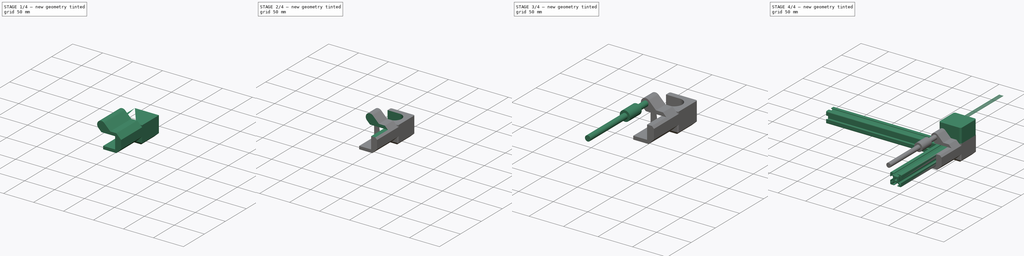
[diagram: build sequence overview — one tinted view per stage of 4, left to right]
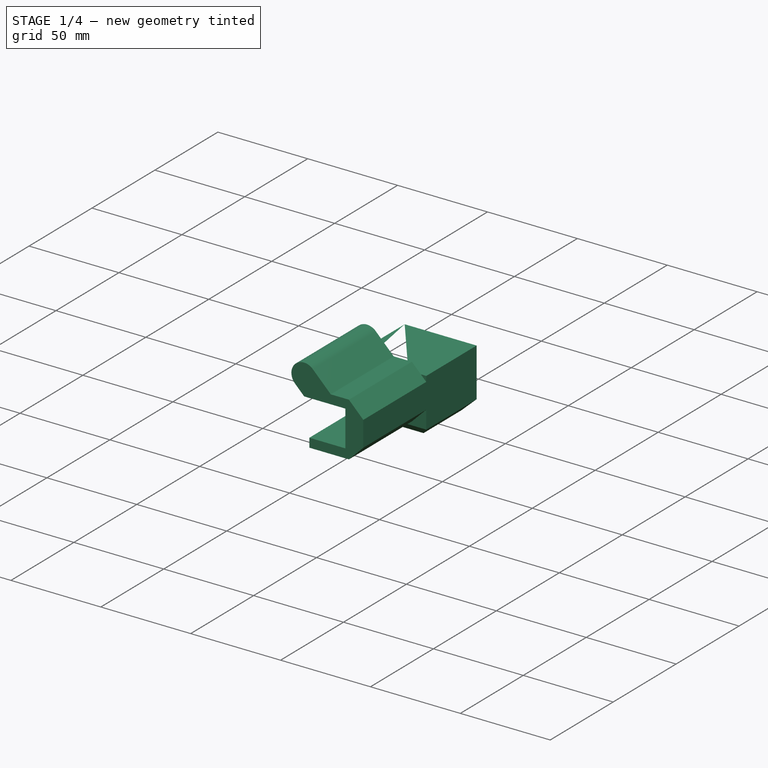
[diagram: stage 1 of 4 — iso view after this stage's code; geometry added in this stage tinted green]
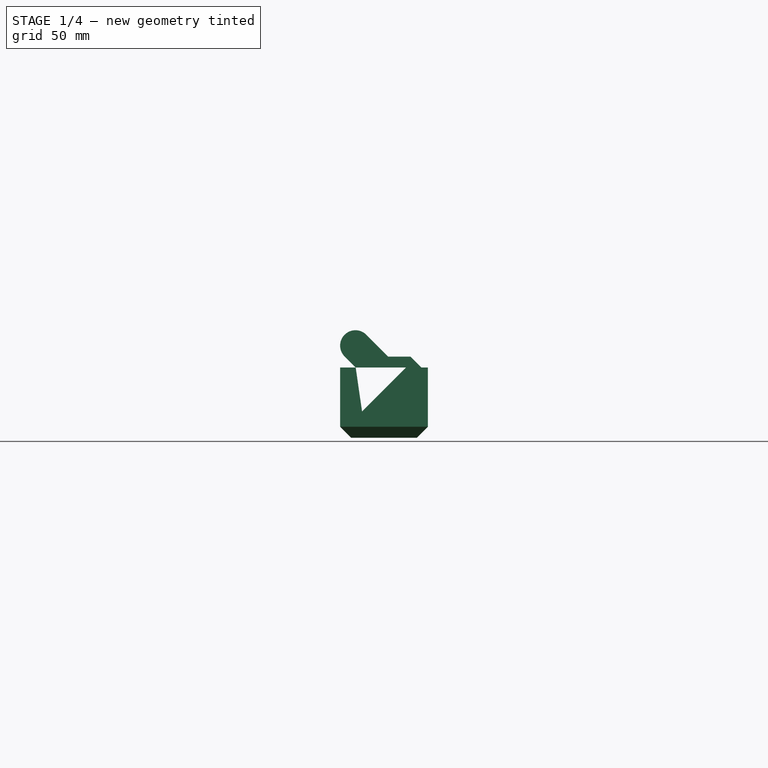
[diagram: stage 1 of 4 — front view after this stage's code; geometry added in this stage tinted green]
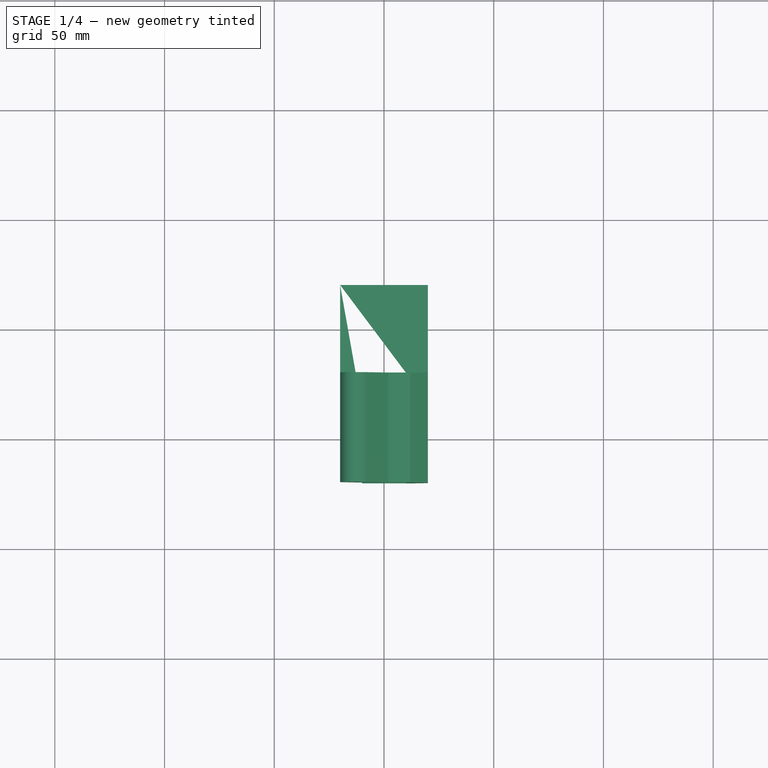
[diagram: stage 1 of 4 — top view after this stage's code; geometry added in this stage tinted green]
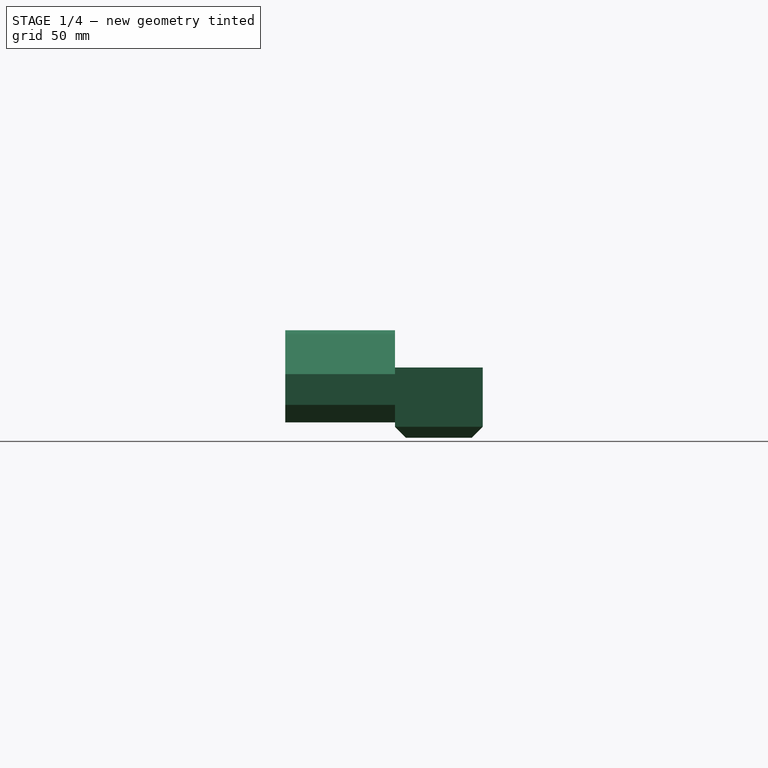
[diagram: stage 1 of 4 — right view after this stage's code; geometry added in this stage tinted green]
FCSTD DOCUMENT  (FreeCAD 0.16R4945 (Git))
Label: PulleyCover
License: All rights reserved
LicenseURL: http://en.wikipedia.org/wiki/All_rights_reserved
objects: Part::Mirroring×5, Sketcher::SketchObject×5, Part::Feature×2, PartDesign::Pad×2, PartDesign::Pocket×2, Part::Chamfer×1, App::DocumentObjectGroup×1, Part::Fillet×1
note: 22 computed .brp shape members not serialized (recipe doc carries the construction recipe); baked Part::Feature solids carry a one-line shape summary decoded from their .brp

FEATURE [Sketcher::SketchObject] Sketch001  label="Base"
  sketch-geometry (4):
    g0: LineSegment StartX=-20 StartY=-20 StartZ=0 EndX=-20 EndY=20 EndZ=0
    g1: LineSegment StartX=-20 StartY=20 StartZ=0 EndX=20 EndY=20 EndZ=0
    g2: LineSegment StartX=20 StartY=20 StartZ=0 EndX=20 EndY=-20 EndZ=0
    g3: LineSegment StartX=20 StartY=-20 StartZ=0 EndX=-20 EndY=-20 EndZ=0
  constraints (12):
    c: Coincident(g0,g1)
    c: Coincident(g1,g2)
    c: Coincident(g2,g3)
    c: Horizontal(g1)
    c: Horizontal(g3)
    c: Vertical(g0)
    c: Vertical(g2)
    c: DistanceX(g1) = 40
    c: DistanceY(g0) = 40
    c: Symmetric(g1,g0,g-2)
    c: Coincident(g3,g0)
    c: DistanceY(g0) = -20
FEATURE [Part::Feature] Pocket013001  label="IdlerHold"
  Placement = pos=(0,-150,-10) rot=(0,0,1;0rad)
  shape: bbox 80.83 x 79.49 x 49.8 mm, 107 faces (baked)
FEATURE [PartDesign::Pad] Pad  label="Base001"
  Length = 32
  Length2 = 100
  Reversed = true
  Sketch = -> Sketch001
  Type = 0
FEATURE [Part::Chamfer] Chamfer
  Base = -> Pad
  Edges = 4 edges r=5: [Edge4,Edge7,Edge10,Edge12]
FEATURE [App::DocumentObjectGroup] Group  label="src"
  Group = -> [Pocket013001,Part__Mirroring002,Part__Mirroring004,Sketch,Part__Mirroring,Part__Mirroring001,Pocket008001,Part__Mirroring006]
FEATURE [Sketcher::SketchObject] Sketch004  label="SmRodHold"
  Placement = pos=(0,-20,0) rot=(1,0,0;1.5708rad)
  Support = -> Chamfer [Face2]
  sketch-geometry (13):
    g0: LineSegment StartX=20 StartY=-3 StartZ=0 EndX=20 EndY=-17 EndZ=0
    g1: LineSegment StartX=12 StartY=-25 StartZ=0 EndX=-10 EndY=-25 EndZ=0
    g2: LineSegment StartX=-10 StartY=-25 StartZ=0 EndX=-10 EndY=-20 EndZ=0
    g3: LineSegment StartX=-10 StartY=-20 StartZ=0 EndX=10 EndY=-20 EndZ=0
    g4: LineSegment StartX=10 StartY=-20 StartZ=0 EndX=10 EndY=0 EndZ=0
    g5: ArcOfCircle CenterX=-13 CenterY=10 CenterZ=0 NormalX=0 NormalY=0 NormalZ=1 Radius=7 StartAngle=0.785395 EndAngle=3.92699
    g6: LineSegment StartX=-17.9497 StartY=5.05025 StartZ=0 EndX=-12.8995 EndY=0 EndZ=0
    g7: LineSegment StartX=1.89949 StartY=5 StartZ=0 EndX=-8.05023 EndY=14.9497 EndZ=0
    g8: LineSegment StartX=1.89949 StartY=5 StartZ=0 EndX=12 EndY=5 EndZ=0
    g9: LineSegment StartX=-12.8995 StartY=0 StartZ=0 EndX=10 EndY=0 EndZ=0
    g10: LineSegment StartX=12 StartY=5 StartZ=0 EndX=20 EndY=-3 EndZ=0
    g11: LineSegment StartX=12 StartY=-25 StartZ=0 EndX=20 EndY=-17 EndZ=0
    g12: LineSegment [constr] StartX=12 StartY=5 StartZ=0 EndX=12 EndY=-25 EndZ=0
  constraints (39):
    c: Coincident(g1,g2)
    c: Coincident(g2,g3)
    c: Coincident(g3,g4)
    c: Horizontal(g3)
    c: Horizontal(g1)
    c: Vertical(g0)
    c: Vertical(g4)
    c: Vertical(g2)
    c: DistanceY(g2) = 5
    c: DistanceX(g3) = 20
    c: DistanceX(g0) = 20
    c: DistanceY(g3) = -20
    c: DistanceX(g4) = 10
    c: DistanceY(g4) = 20
    c: Coincident(g6,g5)
    c: Coincident(g5,g7)
    c: DistanceX(g5) = -13
    c: DistanceY(g5) = 10
    c: Radius(g5) = 7
    c: Tangent(g6,g5)
    c: Tangent(g7,g5)
    c: Parallel(g7,g6)
    c: Coincident(g8,g7)
    c: Horizontal(g8)
    c: Angle(g7) = 2.35619
    c: Coincident(g9,g4)
    c: Coincident(g9,g6)
    c: Horizontal(g9)
    c: Coincident(g10,g8)
    c: Coincident(g10,g0)
    c: Angle(g10) = -0.785398
    c: DistanceY(g8) = 5
    c: Coincident(g11,g1)
    c: Coincident(g11,g0)
    c: Angle(g11) = 0.785398
    c: Vertical(g12)
    c: Coincident(g12,g8)
    c: Coincident(g12,g1)
    c: DistanceX(g8,g0) = 8
FEATURE [PartDesign::Pad] Pad001  label="SmRodHold001"
  Length = 50
  Length2 = 100
  Sketch = -> Sketch004
  Type = 0
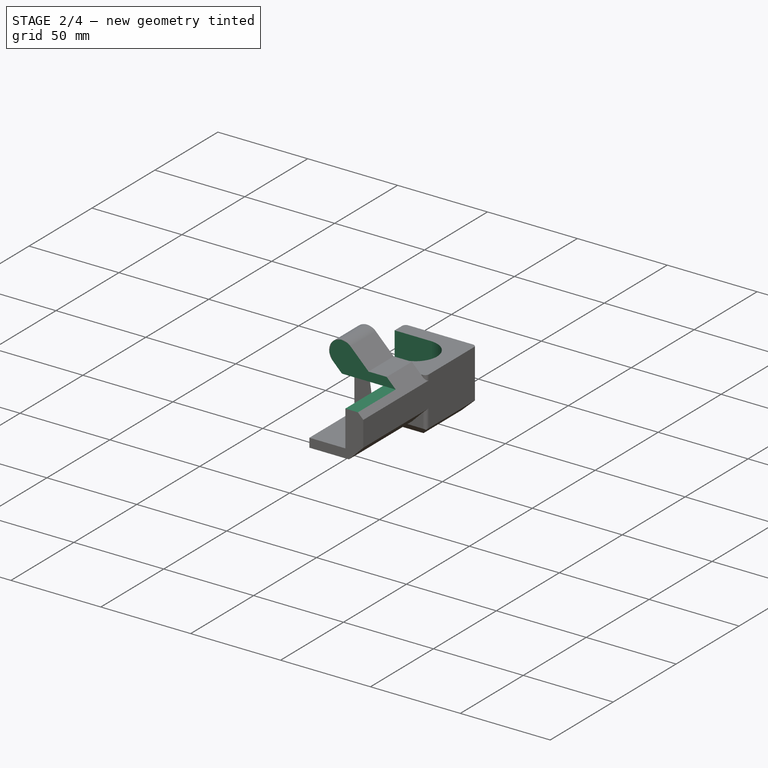
[diagram: stage 2 of 4 — iso view after this stage's code; geometry added in this stage tinted green]
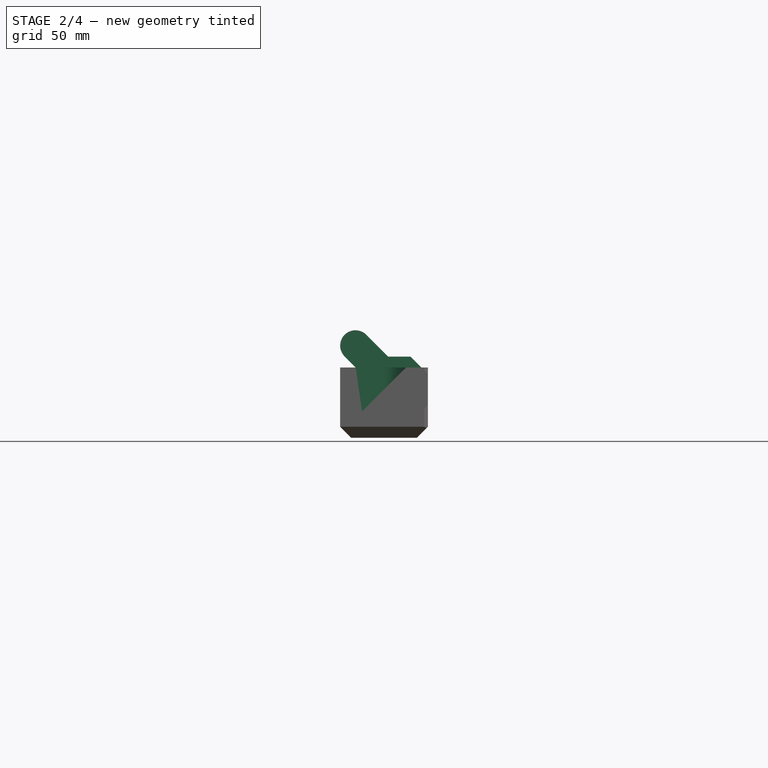
[diagram: stage 2 of 4 — front view after this stage's code; geometry added in this stage tinted green]
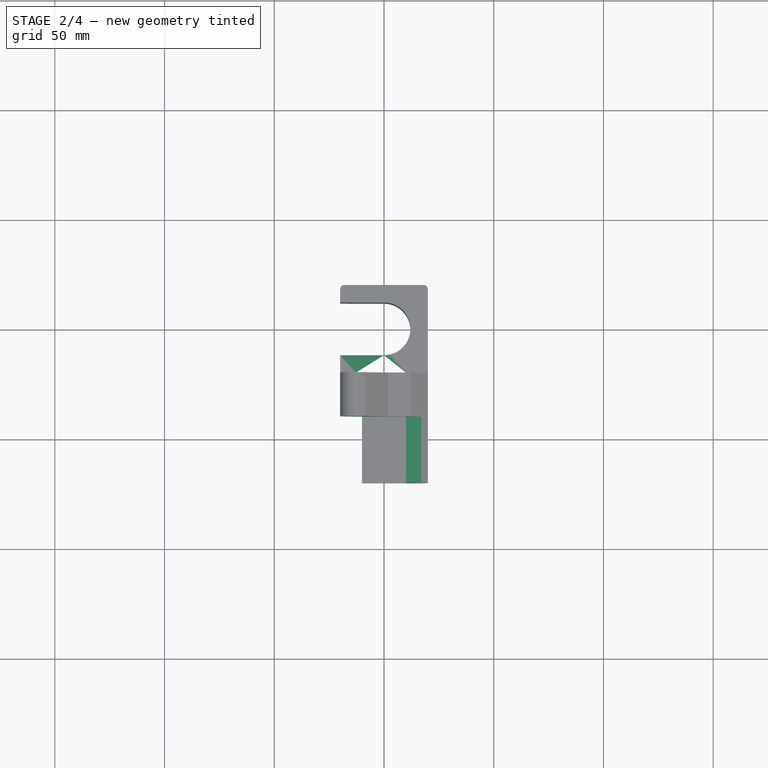
[diagram: stage 2 of 4 — top view after this stage's code; geometry added in this stage tinted green]
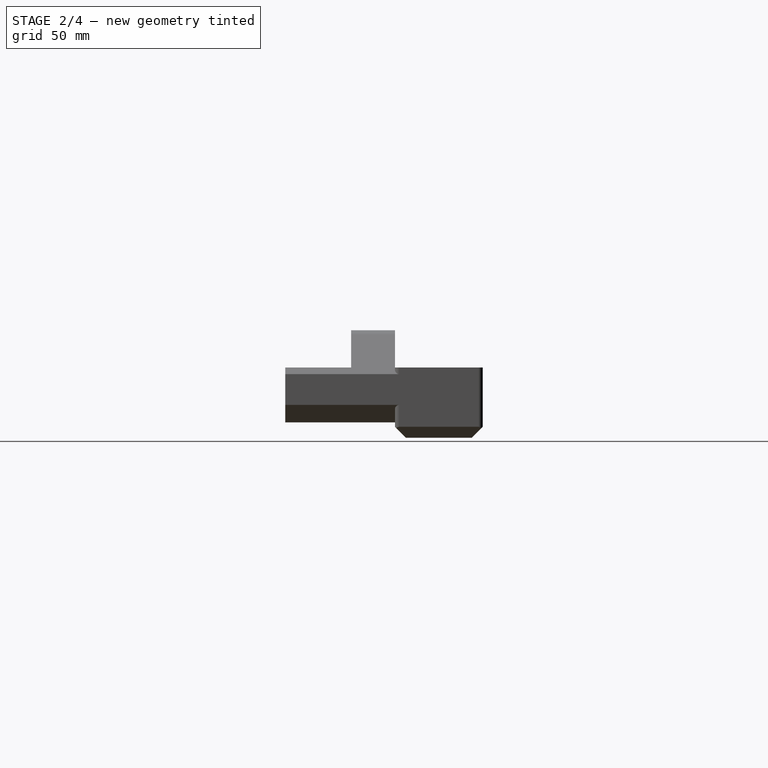
[diagram: stage 2 of 4 — right view after this stage's code; geometry added in this stage tinted green]
FEATURE [Part::Fillet] Fillet
  Base = -> Pad001
  Edges = 4 edges r=2: [Edge27,Edge45,Edge47,Edge50]
FEATURE [Sketcher::SketchObject] Sketch005  label="AxisEndCut"
  Placement = pos=(20,0,0) rot=(0.57735,0.57735,0.57735;2.0944rad)
  Support = -> Fillet [Face7]
  sketch-geometry (4):
    g0: LineSegment StartX=-77.7263 StartY=23.9465 StartZ=0 EndX=-40 EndY=23.9465 EndZ=0
    g1: LineSegment StartX=-40 StartY=23.9465 StartZ=0 EndX=-40 EndY=0 EndZ=0
    g2: LineSegment StartX=-40 StartY=0 StartZ=0 EndX=-77.7263 EndY=0 EndZ=0
    g3: LineSegment StartX=-77.7263 StartY=0 StartZ=0 EndX=-77.7263 EndY=23.9465 EndZ=0
  constraints (10):
    c: Coincident(g0,g1)
    c: Coincident(g1,g2)
    c: Coincident(g2,g3)
    c: Coincident(g3,g0)
    c: Horizontal(g0)
    c: Horizontal(g2)
    c: Vertical(g1)
    c: Vertical(g3)
    c: PointOnObject(g1,g-1)
    c: DistanceX(g1) = -40
FEATURE [PartDesign::Pocket] Pocket  label="AxisEndCut001"
  Length = 5
  Sketch = -> Sketch005
  Type = 1
FEATURE [Sketcher::SketchObject] Sketch006  label="ShaftPlace"
  Placement = pos=(0,0,-32) rot=(1,0,0;3.14159rad)
  Support = -> Pocket [Face29]
  sketch-geometry (4):
    g0: ArcOfCircle CenterX=0 CenterY=0 CenterZ=0 NormalX=0 NormalY=0 NormalZ=1 Radius=12 StartAngle=4.71239 EndAngle=7.85399
    g1: LineSegment StartX=-4.81024e-05 StartY=12 StartZ=0 EndX=-32.2043 EndY=12 EndZ=0
    g2: LineSegment StartX=-32.2043 StartY=12 StartZ=0 EndX=-32.2043 EndY=-12 EndZ=0
    g3: LineSegment StartX=-32.2043 StartY=-12 StartZ=0 EndX=-1.2845e-08 EndY=-12 EndZ=0
  constraints (11):
    c: Coincident(g1,g2)
    c: Coincident(g2,g3)
    c: Coincident(g0,g3)
    c: Coincident(g1,g0)
    c: Horizontal(g1)
    c: Horizontal(g3)
    c: Vertical(g2)
    c: Tangent(g1,g0)
    c: Tangent(g3,g0)
    c: Coincident(g0,g-1)
    c: Radius(g0) = 12
FEATURE [PartDesign::Pocket] Pocket013002  label="ShaftPlace001"
  Length = 33
  Sketch = -> Sketch006
  Type = 1
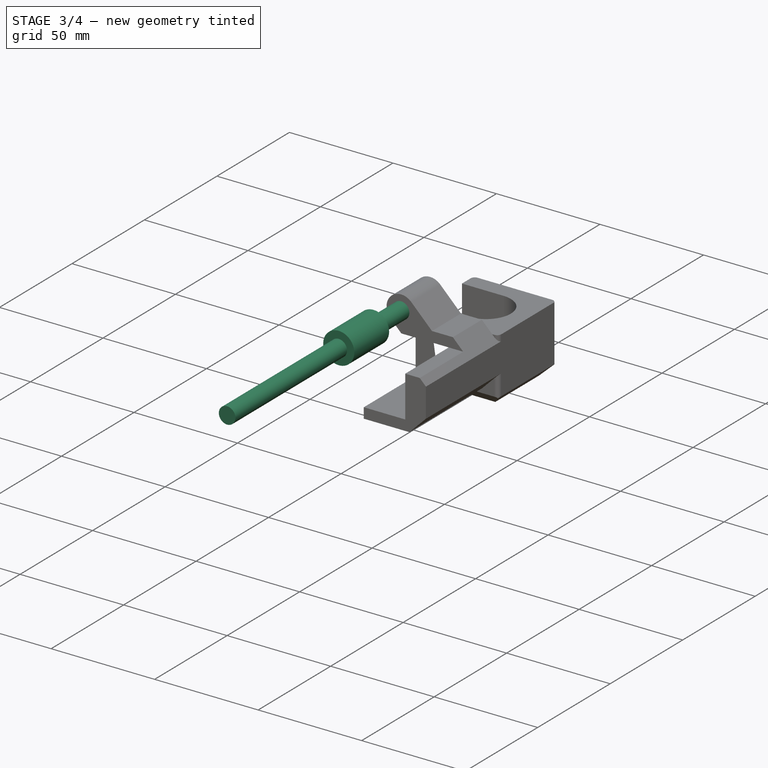
[diagram: stage 3 of 4 — iso view after this stage's code; geometry added in this stage tinted green]
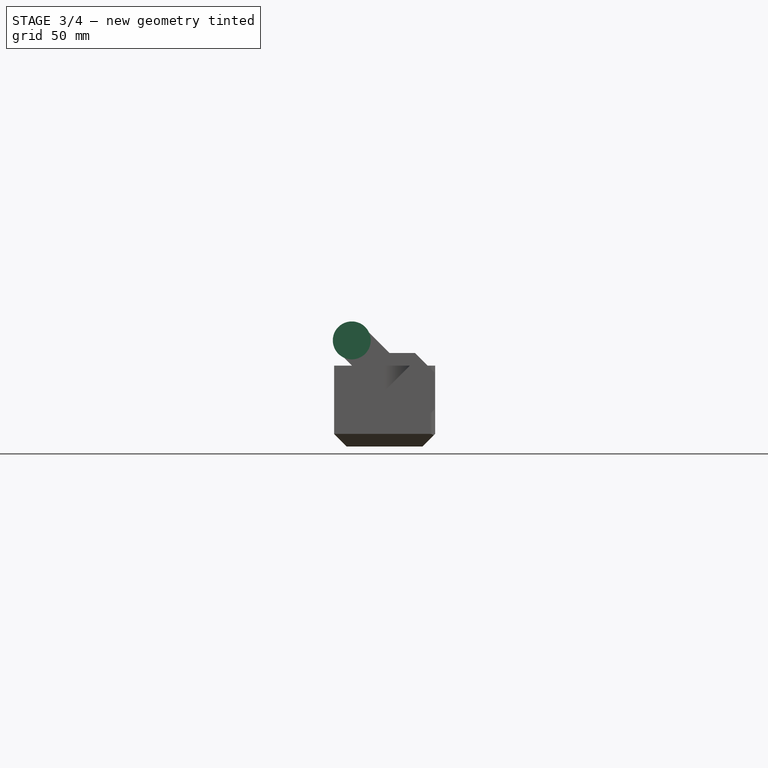
[diagram: stage 3 of 4 — front view after this stage's code; geometry added in this stage tinted green]
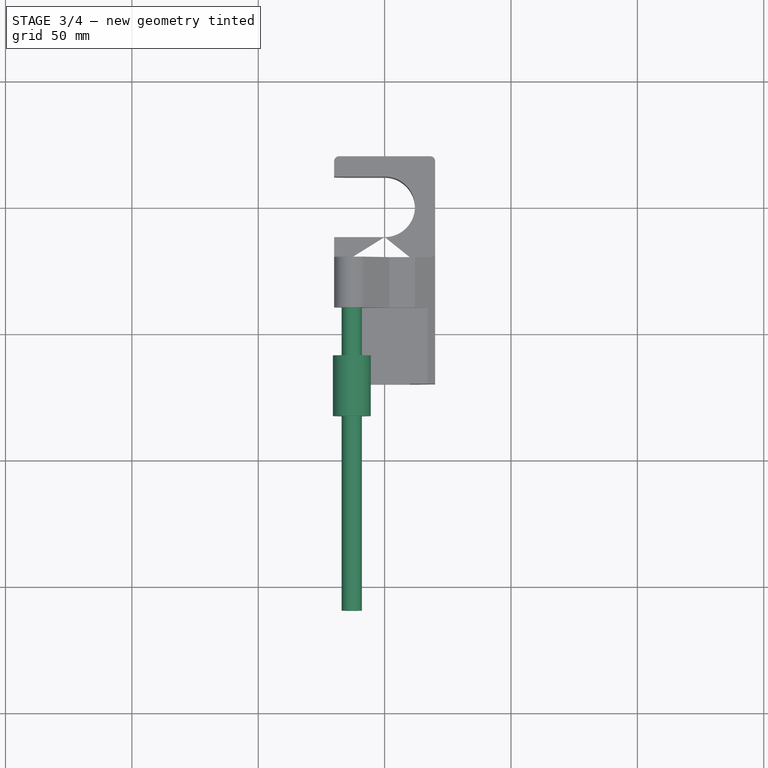
[diagram: stage 3 of 4 — top view after this stage's code; geometry added in this stage tinted green]
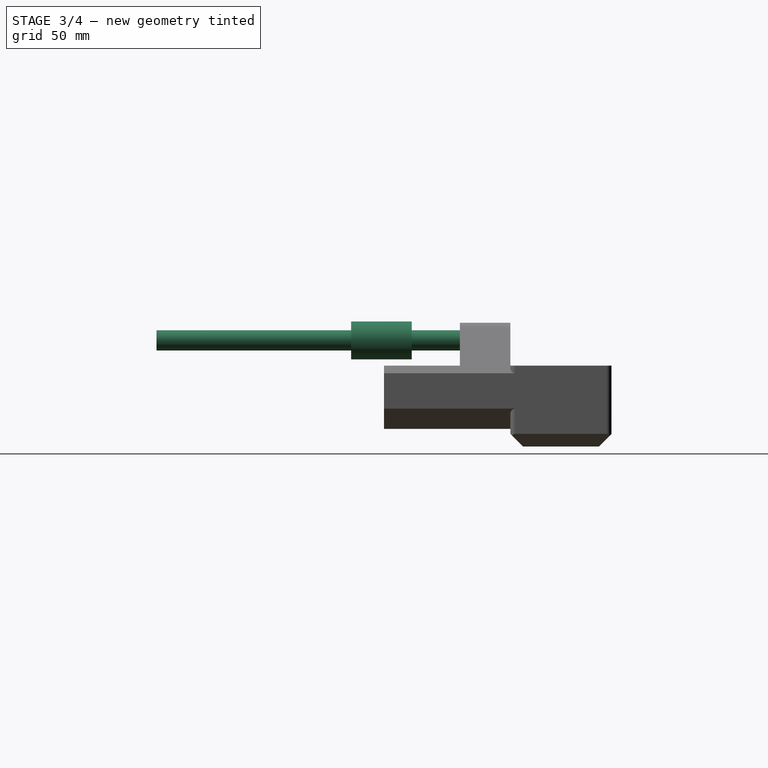
[diagram: stage 3 of 4 — right view after this stage's code; geometry added in this stage tinted green]
FEATURE [Part::Mirroring] Part__Mirroring004  label="YBar (Mirror #5)"
  Base = (0,0,0)
  Normal = (1,0,0)
  Placement = pos=(-110,-90,-20) rot=(0,0,1;0rad)
FEATURE [Part::Feature] Pocket008001  label="Ycarriage"
  Placement = pos=(-40,-71,-10) rot=(0,0,1;0rad)
  shape: bbox 37.5 x 62 x 35.5 mm, 93 faces (baked)
FEATURE [Part::Mirroring] Part__Mirroring006  label="LM8UU001 (Mirror #7)"
  Base = (0,0,0)
  Normal = (1,0,0)
  Placement = pos=(-110,-71,-20) rot=(0,0,1;0rad)
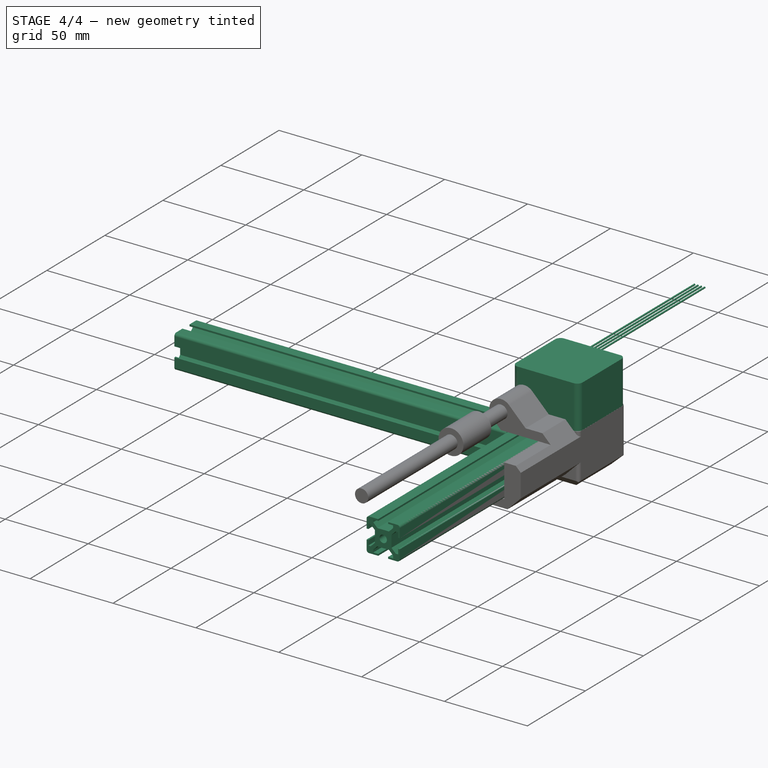
[diagram: stage 4 of 4 — iso view after this stage's code; geometry added in this stage tinted green]
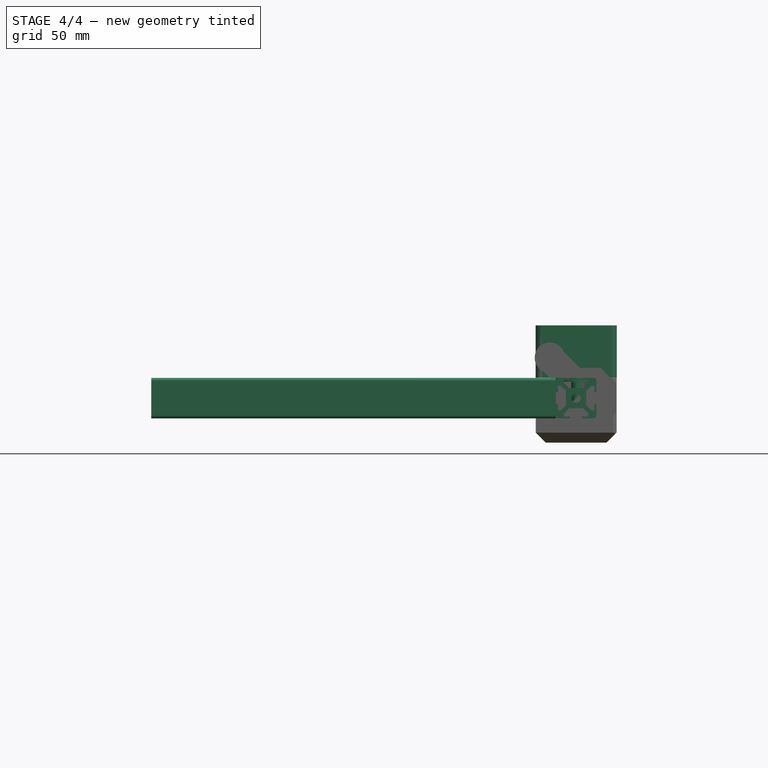
[diagram: stage 4 of 4 — front view after this stage's code; geometry added in this stage tinted green]
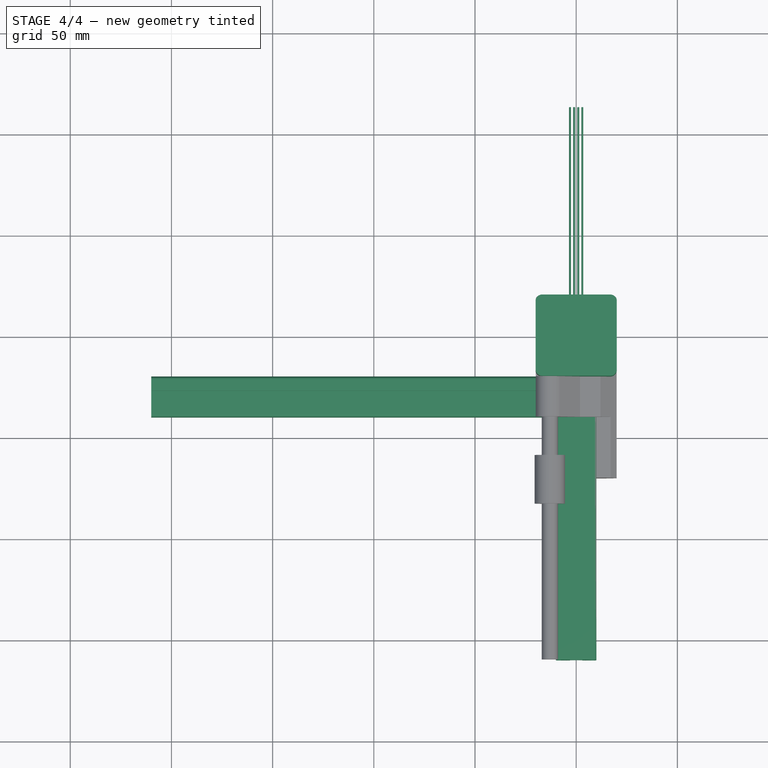
[diagram: stage 4 of 4 — top view after this stage's code; geometry added in this stage tinted green]
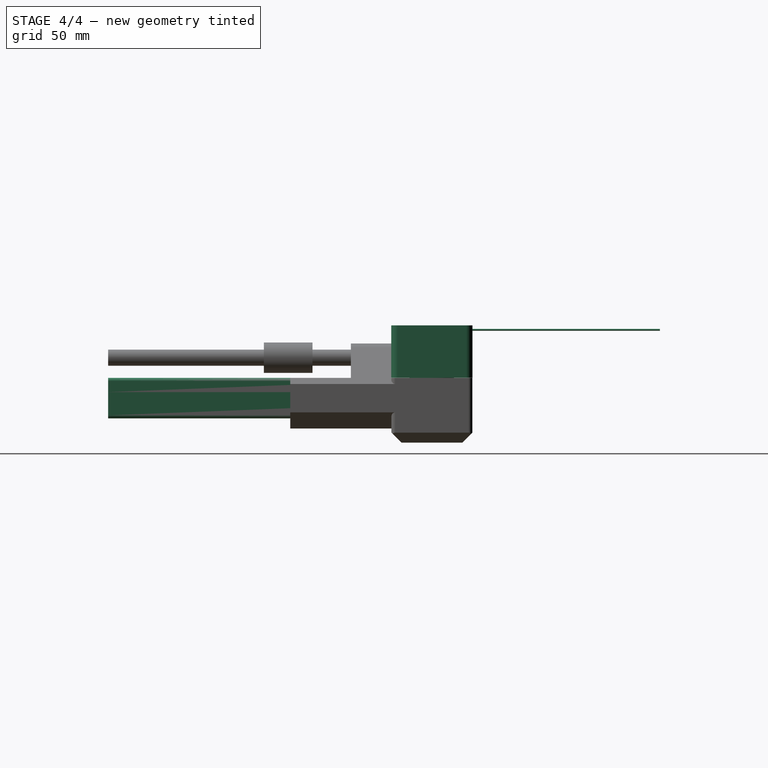
[diagram: stage 4 of 4 — right view after this stage's code; geometry added in this stage tinted green]
FEATURE [Part::Mirroring] Part__Mirroring  label="T slot extrusion 20x20x200.001 (Mirror #1)"
  Base = (0,0,0)
  Normal = (0,1,0)
  Placement = pos=(-110,-90,-20) rot=(0,0,1;0rad)
FEATURE [Part::Mirroring] Part__Mirroring001  label="T slot extrusion 20x20x140.001 (Mirror #2)"
  Base = (0,0,0)
  Normal = (1,0,0)
  Placement = pos=(-110,-90,-20) rot=(0,0,1;0rad)
FEATURE [Sketcher::SketchObject] Sketch  label="StringPath"
  Placement = pos=(-110,-90,-10) rot=(0,0,1;0rad)
  sketch-geometry (17):
    g0: ArcOfCircle CenterX=-110 CenterY=90 CenterZ=0 NormalX=0 NormalY=0 NormalZ=1 Radius=8 StartAngle=6.28318 EndAngle=9.42478
    g1: ArcOfCircle CenterX=110 CenterY=90 CenterZ=0 NormalX=0 NormalY=0 NormalZ=1 Radius=8 StartAngle=6.28319 EndAngle=9.42478
    g2: ArcOfCircle CenterX=110 CenterY=-82 CenterZ=0 NormalX=0 NormalY=0 NormalZ=1 Radius=8 StartAngle=3.14159 EndAngle=6.28319
    g3: ArcOfCircle CenterX=97 CenterY=-17 CenterZ=0 NormalX=0 NormalY=0 NormalZ=1 Radius=5 StartAngle=2.30718e-06 EndAngle=1.5708
    g4: ArcOfCircle CenterX=97 CenterY=17 CenterZ=0 NormalX=0 NormalY=0 NormalZ=1 Radius=5 StartAngle=4.71239 EndAngle=6.28319
    g5: ArcOfCircle CenterX=-97 CenterY=17 CenterZ=0 NormalX=0 NormalY=0 NormalZ=1 Radius=5 StartAngle=3.14159 EndAngle=4.71239
    g6: ArcOfCircle CenterX=-97 CenterY=-17 CenterZ=0 NormalX=0 NormalY=0 NormalZ=1 Radius=5 StartAngle=1.5708 EndAngle=3.14159
    g7: ArcOfCircle CenterX=-110 CenterY=-82 CenterZ=0 NormalX=0 NormalY=0 NormalZ=1 Radius=8 StartAngle=3.14159 EndAngle=6.28319
    g8: LineSegment StartX=-118 StartY=90 StartZ=0 EndX=-118 EndY=-82 EndZ=0
    g9: LineSegment StartX=-102 StartY=-17 StartZ=0 EndX=-102 EndY=-82 EndZ=0
    g10: LineSegment StartX=-97 StartY=-12 StartZ=0 EndX=97 EndY=-12 EndZ=0
    g11: LineSegment StartX=-102 StartY=90 StartZ=0 EndX=-102 EndY=17 EndZ=0
    g12: LineSegment StartX=102 StartY=90 StartZ=0 EndX=102 EndY=17 EndZ=0
    g13: LineSegment StartX=118 StartY=90 StartZ=0 EndX=118 EndY=-82 EndZ=0
    g14: LineSegment StartX=102 StartY=-82 StartZ=0 EndX=102 EndY=-17 EndZ=0
    g15: LineSegment StartX=-97 StartY=12 StartZ=0 EndX=-20.947 EndY=12 EndZ=0
    g16: LineSegment StartX=14.5397 StartY=12 StartZ=0 EndX=97 EndY=12 EndZ=0
  constraints (49):
    c: Equal(g0,g1)
    c: Symmetric(g0,g1,g-2)
    c: Symmetric(g2,g7,g-2)
    c: Equal(g7,g2)
    c: Symmetric(g6,g3,g-2)
    c: Symmetric(g5,g4,g-2)
    c: DistanceX(g2) = 110
    c: DistanceX(g1) = 110
    c: DistanceY(g1) = 90
    c: DistanceY(g2) = -82
    c: Coincident(g13,g1)
    c: Coincident(g13,g2)
    c: Coincident(g14,g2)
    c: Coincident(g14,g3)
    c: Coincident(g3,g10)
    c: Coincident(g4,g12)
    c: Coincident(g6,g10)
    c: Coincident(g6,g9)
    c: Coincident(g7,g9)
    c: Coincident(g7,g8)
    c: Coincident(g8,g0)
    c: Coincident(g11,g0)
    c: Coincident(g12,g1)
    c: Coincident(g5,g11)
    c: Coincident(g16,g4)
    c: Coincident(g15,g5)
    c: Vertical(g8)
    c: Vertical(g13)
    c: Vertical(g12)
    c: Vertical(g11)
    c: Vertical(g9)
    c: Vertical(g14)
    c: Horizontal(g10)
    c: Horizontal(g15)
    c: Horizontal(g16)
    c: PointOnObject(g15,g16)
    c: Tangent(g5,g15)
    c: Tangent(g11,g0)
    c: Tangent(g9,g7)
    c: Tangent(g9,g6)
    c: Tangent(g10,g3)
    c: Tangent(g16,g4)
    c: Radius(g0) = 8
    c: Symmetric(g5,g6,g-1)
    c: Equal(g6,g5)
    c: Tangent(g1,g13)
    c: Tangent(g8,g0)
    c: Radius(g4) = 5
    c: DistanceY(g3,g4) = 24
FEATURE [Part::Mirroring] Part__Mirroring002  label="4018X SNGL (Mirror #3)"
  Base = (0,0,0)
  Normal = (1,0,0)
  Placement = pos=(-110,-90,-20) rot=(0,0,1;0rad)
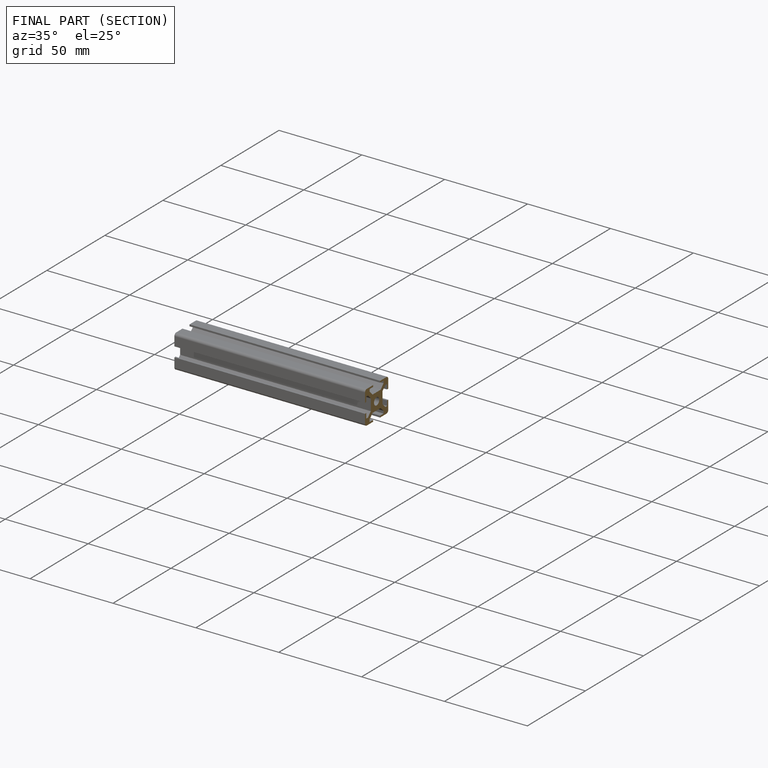
[diagram: finished part — half-section view (interior)]
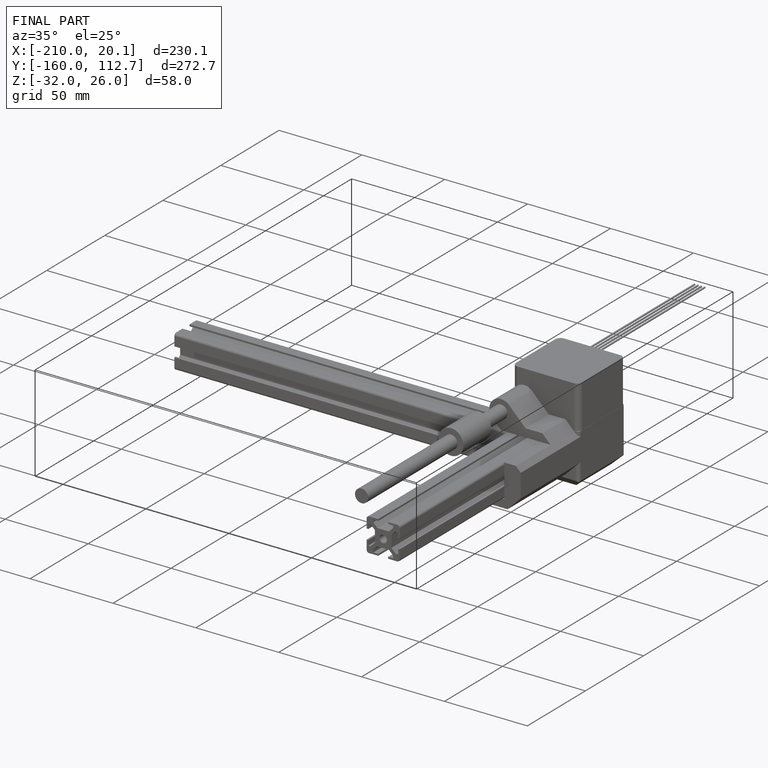
[diagram: finished part — iso view with bounding-box wireframe]
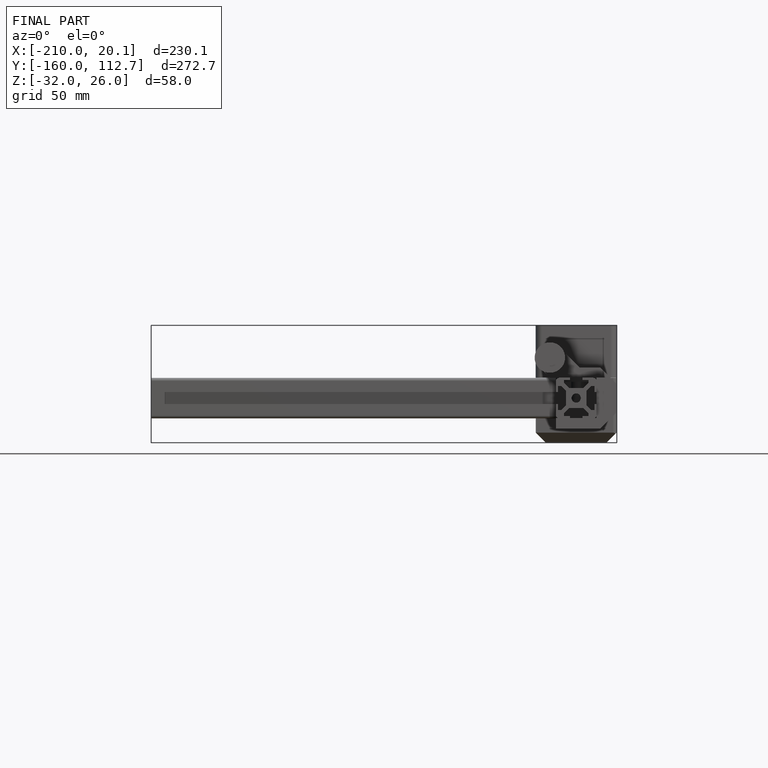
[diagram: finished part — front view with bounding-box wireframe]
